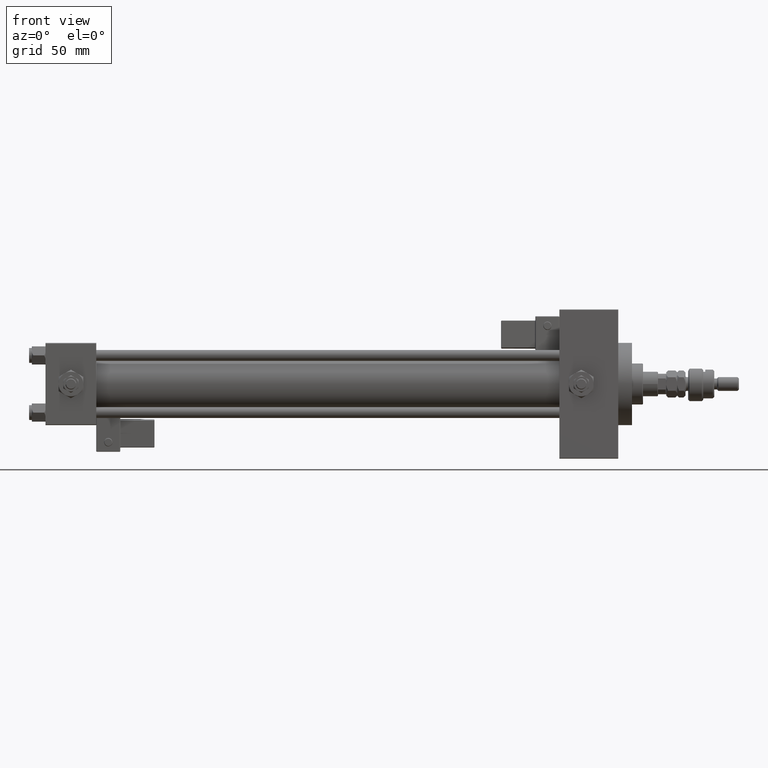
[diagram: clean part render]
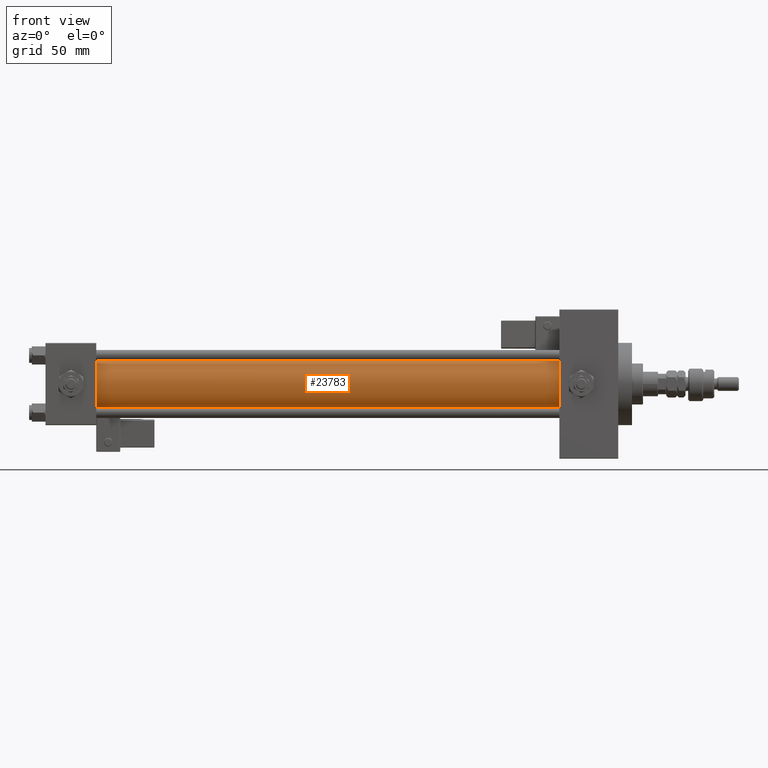
[diagram: same view with one face highlighted and labeled with its STEP entity id]
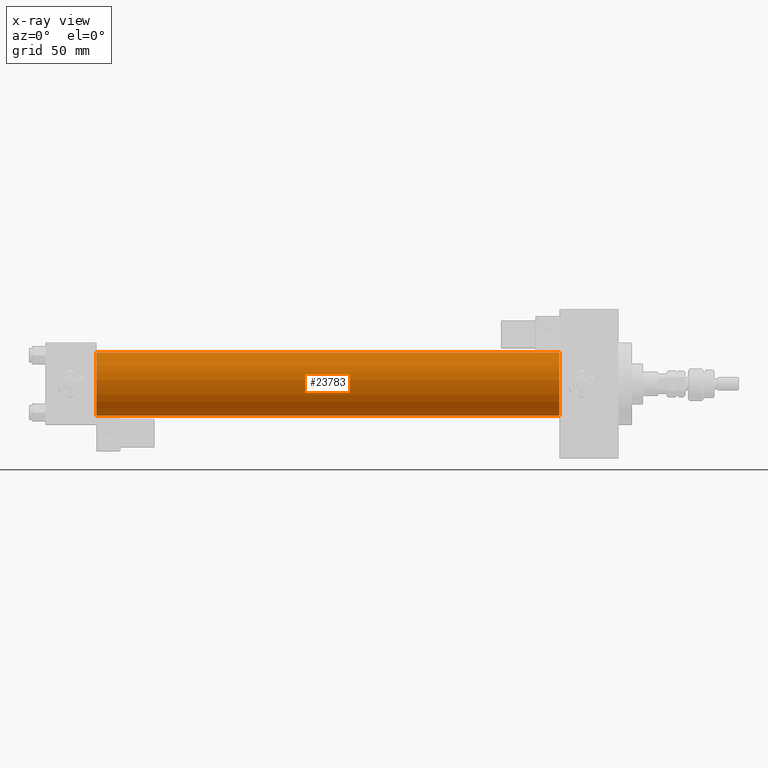
[diagram: x-ray of the same camera — body ghosted, the highlighted face saturated]
A machine part, front view. The second image highlights one B-rep face of the part: STEP entity #23783.
The next image is the same camera in x-ray: the body ghosted, the highlighted face saturated — about 0% of this face is hidden behind the body in this view.
In plain terms, the highlighted cylindrical surface (edge-blend (fillet) strip) has radius 23 mm, axis along (-1, -0, -0).
Its self-contained STEP definition (entity closure, byte-faithful):
#2575 = DIRECTION ( 'NONE',  ( -1.000000000000000000, -0.000000000000000000, -0.000000000000000000 ) ) ;
#7196 = FACE_OUTER_BOUND ( 'NONE', #19799, .T. ) ;
#8865 = ORIENTED_EDGE ( 'NONE', *, *, #36514, .F. ) ;
#8933 = DIRECTION ( 'NONE',  ( 0.000000000000000000, 0.000000000000000000, 1.000000000000000000 ) ) ;
#9347 = DIRECTION ( 'NONE',  ( 1.000000000000000000, 0.000000000000000000, 0.000000000000000000 ) ) ;
#9793 = VECTOR ( 'NONE', #39270, 1000.000000000000000 ) ;
#10197 = LINE ( 'NONE', #48062, #9793 ) ;
#11311 = DIRECTION ( 'NONE',  ( -1.000000000000000000, -0.000000000000000000, -0.000000000000000000 ) ) ;
#12073 = CIRCLE ( 'NONE', #48016, 23.00000000000000000 ) ;
#13521 = CARTESIAN_POINT ( 'NONE',  ( 36.99999999999997868, 2.146024240737016609E-16, -23.00000000000000000 ) ) ;
#16164 = AXIS2_PLACEMENT_3D ( 'NONE', #48909, #11311, #24477 ) ;
#19799 = EDGE_LOOP ( 'NONE', ( #8865, #30877, #43932, #48804 ) ) ;
#22095 = VERTEX_POINT ( 'NONE', #50207 ) ;
#23783 = ADVANCED_FACE ( 'NONE', ( #7196 ), #49720, .T. ) ;
#24477 = DIRECTION ( 'NONE',  ( 0.000000000000000000, 0.000000000000000000, 1.000000000000000000 ) ) ;
#25137 = DIRECTION ( 'NONE',  ( 1.000000000000000000, -0.000000000000000000, 0.000000000000000000 ) ) ;
#27424 = VERTEX_POINT ( 'NONE', #37413 ) ;
#29657 = DIRECTION ( 'NONE',  ( 0.000000000000000000, 0.000000000000000000, -1.000000000000000000 ) ) ;
#30594 = VECTOR ( 'NONE', #2575, 1000.000000000000000 ) ;
#30877 = ORIENTED_EDGE ( 'NONE', *, *, #44970, .F. ) ;
#33487 = EDGE_CURVE ( 'NONE', #22095, #49140, #12073, .T. ) ;
#35440 = VERTEX_POINT ( 'NONE', #41912 ) ;
#36514 = EDGE_CURVE ( 'NONE', #27424, #49140, #48409, .T. ) ;
#37413 = CARTESIAN_POINT ( 'NONE',  ( 375.0000000000000000, 2.146024240737016609E-16, -23.00000000000000000 ) ) ;
#39270 = DIRECTION ( 'NONE',  ( -1.000000000000000000, -0.000000000000000000, -0.000000000000000000 ) ) ;
#39477 = AXIS2_PLACEMENT_3D ( 'NONE', #50786, #9347, #29657 ) ;
#39890 = CARTESIAN_POINT ( 'NONE',  ( 375.0000000000000000, 2.146024240737016609E-16, -23.00000000000000000 ) ) ;
#41912 = CARTESIAN_POINT ( 'NONE',  ( 375.0000000000000000, -2.602085213965210642E-15, 23.00000000000000000 ) ) ;
#43932 = ORIENTED_EDGE ( 'NONE', *, *, #47857, .T. ) ;
#44759 = CIRCLE ( 'NONE', #39477, 23.00000000000000000 ) ;
#44970 = EDGE_CURVE ( 'NONE', #35440, #27424, #44759, .T. ) ;
#47857 = EDGE_CURVE ( 'NONE', #35440, #22095, #10197, .T. ) ;
#48016 = AXIS2_PLACEMENT_3D ( 'NONE', #49845, #25137, #8933 ) ;
#48062 = CARTESIAN_POINT ( 'NONE',  ( 375.0000000000000000, -2.602085213965210642E-15, 23.00000000000000000 ) ) ;
#48409 = LINE ( 'NONE', #39890, #30594 ) ;
#48804 = ORIENTED_EDGE ( 'NONE', *, *, #33487, .T. ) ;
#48909 = CARTESIAN_POINT ( 'NONE',  ( 375.0000000000000000, -2.602085213965210642E-15, 0.000000000000000000 ) ) ;
#49140 = VERTEX_POINT ( 'NONE', #13521 ) ;
#49720 = CYLINDRICAL_SURFACE ( 'NONE', #16164, 23.00000000000000000 ) ;
#49845 = CARTESIAN_POINT ( 'NONE',  ( 36.99999999999997868, -2.602085213965210642E-15, 0.000000000000000000 ) ) ;
#50207 = CARTESIAN_POINT ( 'NONE',  ( 36.99999999999997868, -2.602085213965210642E-15, 23.00000000000000000 ) ) ;
#50786 = CARTESIAN_POINT ( 'NONE',  ( 375.0000000000000000, -2.602085213965210642E-15, 0.000000000000000000 ) ) ;